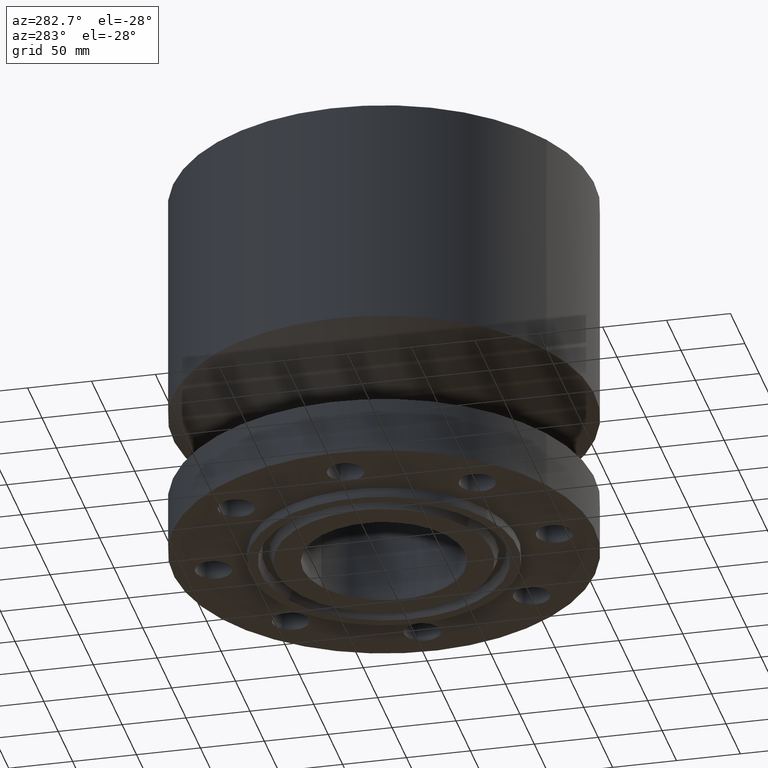
[diagram: clean part render]
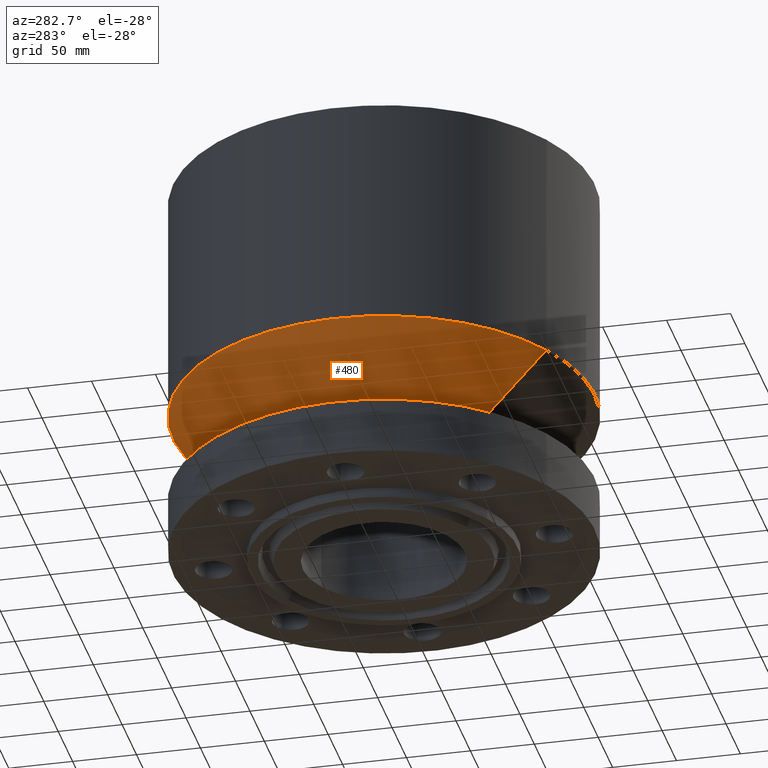
[diagram: same view with one face highlighted and labeled with its STEP entity id]
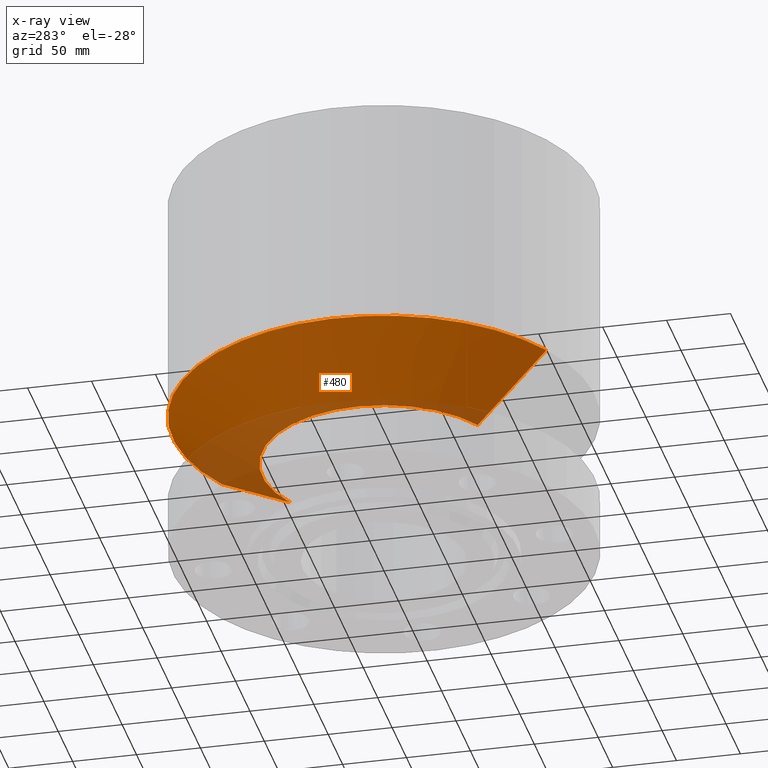
[diagram: x-ray of the same camera — body ghosted, the highlighted face saturated]
A machine part, auxiliary view. The second image highlights one B-rep face of the part: STEP entity #480.
The next image is the same camera in x-ray: the body ghosted, the highlighted face saturated — about 18% of this face is hidden behind the body in this view.
In plain terms, the highlighted conical surface has half-angle 60 deg.
Its self-contained STEP definition (entity closure, byte-faithful):
#428=AXIS2_PLACEMENT_3D('Circle Axis2P3D',#426,#427,$) ;
#441=AXIS2_PLACEMENT_3D('Cone Axis2P3D',#438,#439,#440) ;
#471=AXIS2_PLACEMENT_3D('Circle Axis2P3D',#469,#470,$) ;
#404=CARTESIAN_POINT('Vertex',(1.79784576977,3.2909346071,3.00000000001)) ;
#411=CARTESIAN_POINT('Vertex',(-1.79784576977,-3.2909346071,3.00000000001)) ;
#426=CARTESIAN_POINT('Axis2P3D Location',(0.,0.,3.00000000001)) ;
#438=CARTESIAN_POINT('Axis2P3D Location',(0.,0.,3.00000000001)) ;
#443=CARTESIAN_POINT('Line Origine',(2.45705588536,4.49761062971,3.79385662015)) ;
#447=CARTESIAN_POINT('Vertex',(3.11626600094,5.70428665231,4.58771324029)) ;
#454=CARTESIAN_POINT('Vertex',(-3.11626600094,-5.70428665231,4.58771324029)) ;
#457=CARTESIAN_POINT('Line Origine',(-2.45705588536,-4.49761062971,3.79385662015)) ;
#469=CARTESIAN_POINT('Axis2P3D Location',(0.,0.,4.58771324029)) ;
#427=DIRECTION('Axis2P3D Direction',(0.,0.,-0.0393700787402)) ;
#439=DIRECTION('Axis2P3D Direction',(-0.,-0.,0.0393700787402)) ;
#440=DIRECTION('Axis2P3D XDirection',(0.0188750212049,0.0345504945626,0.)) ;
#444=DIRECTION('Vector Direction',(0.0163462478604,0.0299216060045,0.0196850393701)) ;
#458=DIRECTION('Vector Direction',(-0.0163462478604,-0.0299216060045,0.0196850393701)) ;
#470=DIRECTION('Axis2P3D Direction',(-0.,0.,0.0393700787402)) ;
#445=VECTOR('Line Direction',#444,0.0393700787402) ;
#459=VECTOR('Line Direction',#458,0.0393700787402) ;
#475=ORIENTED_EDGE('',*,*,#430,.F.) ;
#476=ORIENTED_EDGE('',*,*,#461,.T.) ;
#477=ORIENTED_EDGE('',*,*,#473,.T.) ;
#478=ORIENTED_EDGE('',*,*,#449,.F.) ;
#480=ADVANCED_FACE('PartBody',(#479),#442,.T.) ;
#429=CIRCLE('generated circle',#428,3.75000000002) ;
#472=CIRCLE('generated circle',#471,6.50000000003) ;
#442=CONICAL_SURFACE('Cone',#441,3.75000000001,1.0471975512) ;
#430=EDGE_CURVE('',#412,#405,#429,.T.) ;
#449=EDGE_CURVE('',#405,#448,#446,.T.) ;
#461=EDGE_CURVE('',#412,#455,#460,.T.) ;
#473=EDGE_CURVE('',#455,#448,#472,.F.) ;
#474=EDGE_LOOP('',(#475,#476,#477,#478)) ;
#479=FACE_OUTER_BOUND('',#474,.T.) ;
#446=LINE('Line',#443,#445) ;
#460=LINE('Line',#457,#459) ;
#405=VERTEX_POINT('',#404) ;
#412=VERTEX_POINT('',#411) ;
#448=VERTEX_POINT('',#447) ;
#455=VERTEX_POINT('',#454) ;